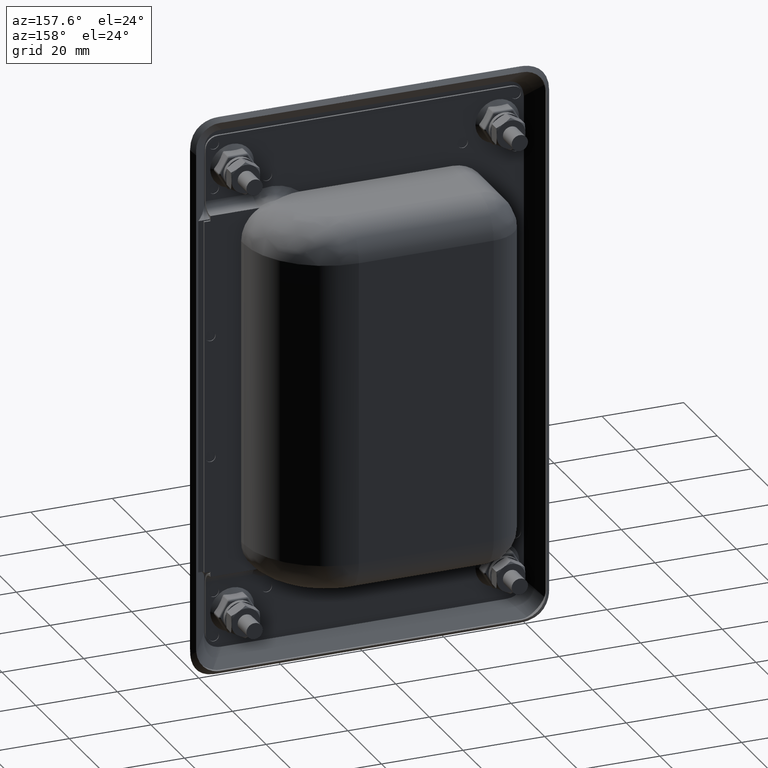
[diagram: clean part render]
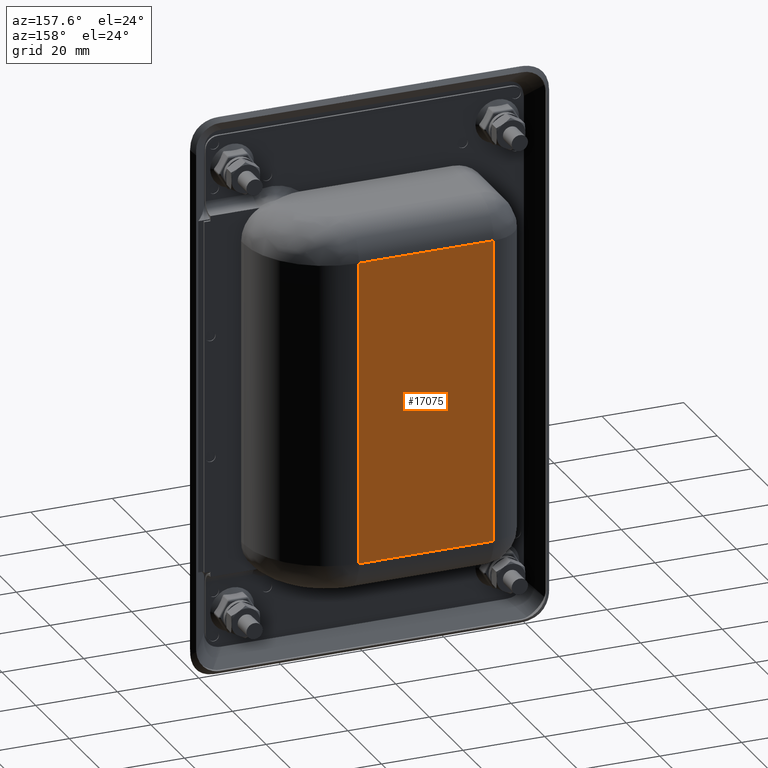
[diagram: same view with one face highlighted and labeled with its STEP entity id]
A machine part, auxiliary view. The second image highlights one B-rep face of the part: STEP entity #17075.
In plain terms, the highlighted face is a freeform B-spline surface patch.
Its self-contained STEP definition (entity closure, byte-faithful):
#16519=CARTESIAN_POINT('',(11.499999999512960,26.000000000162501,37.249999999956891));
#16520=VERTEX_POINT('',#16519);
#16586=CARTESIAN_POINT('',(-21.499999999050200,26.000000000162501,37.249999999928598));
#16587=VERTEX_POINT('',#16586);
#16610=CARTESIAN_POINT('',(-21.499999999050200,26.000000000162501,37.249999999928598));
#16611=CARTESIAN_POINT('',(11.499999999512960,26.000000000162501,37.249999999956891));
#16612=QUASI_UNIFORM_CURVE('',1,(#16610,#16611),.UNSPECIFIED.,.F.,.U.);
#16613=EDGE_CURVE('',#16587,#16520,#16612,.T.);
#16690=CARTESIAN_POINT('',(-21.499999999050200,26.000000000162501,-37.250000000237101));
#16691=VERTEX_POINT('',#16690);
#16713=CARTESIAN_POINT('',(-21.499999999050200,26.000000000162501,-37.250000000237101));
#16714=CARTESIAN_POINT('',(-21.499999999050200,26.000000000162501,37.249999999928598));
#16715=QUASI_UNIFORM_CURVE('',1,(#16713,#16714),.UNSPECIFIED.,.F.,.U.);
#16716=EDGE_CURVE('',#16691,#16587,#16715,.T.);
#16838=CARTESIAN_POINT('',(11.499999999513200,26.000000000162501,-37.250000000208800));
#16839=VERTEX_POINT('',#16838);
#16862=CARTESIAN_POINT('',(11.499999999513200,26.000000000162501,-37.250000000208800));
#16863=CARTESIAN_POINT('',(-21.499999999050200,26.000000000162501,-37.250000000237101));
#16864=QUASI_UNIFORM_CURVE('',1,(#16862,#16863),.UNSPECIFIED.,.F.,.U.);
#16865=EDGE_CURVE('',#16839,#16691,#16864,.T.);
#17049=CARTESIAN_POINT('',(11.499999999512960,26.000000000162501,37.249999999956891));
#17050=CARTESIAN_POINT('',(11.499999999513200,26.000000000162501,-37.250000000208800));
#17051=QUASI_UNIFORM_CURVE('',1,(#17049,#17050),.UNSPECIFIED.,.F.,.U.);
#17052=EDGE_CURVE('',#16520,#16839,#17051,.T.);
#17064=CARTESIAN_POINT('',(-23.148349935018040,26.000000000162501,-40.971274855851327));
#17065=CARTESIAN_POINT('',(13.148350820610011,26.000000000162501,-40.971274855851327));
#17066=CARTESIAN_POINT('',(-23.148349935018040,26.000000000162501,40.971276853816853));
#17067=CARTESIAN_POINT('',(13.148350820610011,26.000000000162501,40.971276853816853));
#17068=B_SPLINE_SURFACE_WITH_KNOTS('',1,1,((#17064,#17066),(#17065,#17067)),.UNSPECIFIED.,.F.,.F.,.U.,(2,2),(2,2),(0.0,36.296700755628059),(0.0,81.942551709668180),.UNSPECIFIED.);
#17069=ORIENTED_EDGE('',*,*,#17052,.T.);
#17070=ORIENTED_EDGE('',*,*,#16865,.T.);
#17071=ORIENTED_EDGE('',*,*,#16716,.T.);
#17072=ORIENTED_EDGE('',*,*,#16613,.T.);
#17073=EDGE_LOOP('',(#17069,#17070,#17071,#17072));
#17074=FACE_OUTER_BOUND('',#17073,.T.);
#17075=ADVANCED_FACE('',(#17074),#17068,.F.);